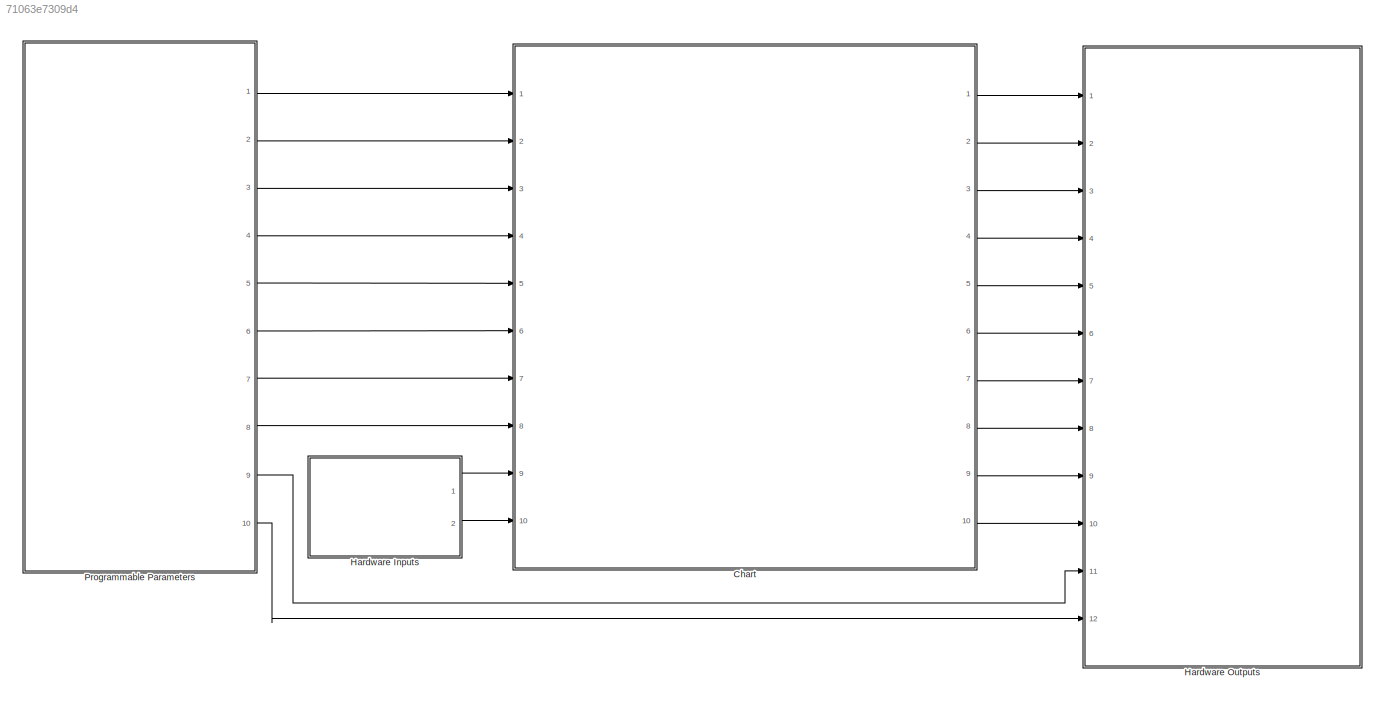
MODEL slx_71063e7309d4
KIND model
CONFIG AbsTol = auto
CONFIG EnableMultiTasking = on
CONFIG FixedStep = 1e-3
CONFIG MaxStep = auto
CONFIG MinStep = auto
CONFIG RelTol = 1e-3
CONFIG SampleTimeConstraint = Unconstrained
CONFIG Solver = FixedStepAuto
CONFIG SolverName = FixedStepAuto
CONFIG StartTime = 0.0
CONFIG StopTime = 10.0
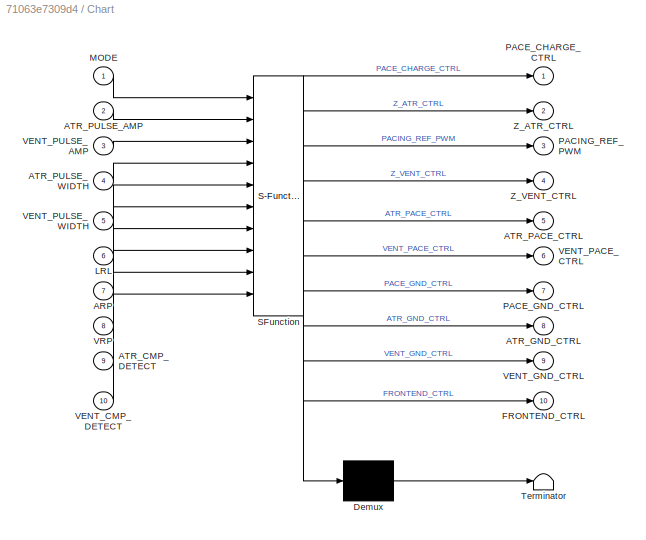
BLOCK [SubSystem] Chart
  ErrorFcn = Stateflow.Translate.translate
  PermitHierarchicalResolution = ExplicitOnly
  Ports = [10, 10]
  RequestExecContextInheritance = off
  SFBlockType = Chart
  TreatAsAtomicUnit = on
BLOCK [Demux] Chart/ Demux 
  Outputs = 1
  Ports = [1, 1]
BLOCK [S-Function] Chart/ SFunction 
  EnableBusSupport = on
  FunctionName = sf_sfun
  PortCounts = [10 11]
  Ports = [10, 11]
  SFcnIsStateOwnerBlock = off
  SFunctionDeploymentMode = off
  Tag = Stateflow S-Function 3
BLOCK [Terminator] Chart/ Terminator 
BLOCK [Inport] Chart/ARP
  Port = 7
BLOCK [Inport] Chart/ATR_CMP_DETECT
  Port = 9
BLOCK [Outport] Chart/ATR_GND_CTRL
  Port = 8
BLOCK [Outport] Chart/ATR_PACE_CTRL
  Port = 5
BLOCK [Inport] Chart/ATR_PULSE_AMP
  Port = 2
BLOCK [Inport] Chart/ATR_PULSE_WIDTH
  Port = 4
BLOCK [Outport] Chart/FRONTEND_CTRL
  Port = 10
BLOCK [Inport] Chart/LRL
  Port = 6
BLOCK [Inport] Chart/MODE
BLOCK [Outport] Chart/PACE_CHARGE_CTRL
BLOCK [Outport] Chart/PACE_GND_CTRL
  Port = 7
BLOCK [Outport] Chart/PACING_REF_PWM
  Port = 3
BLOCK [Inport] Chart/VENT_CMP_DETECT
  Port = 10
BLOCK [Outport] Chart/VENT_GND_CTRL
  Port = 9
BLOCK [Outport] Chart/VENT_PACE_CTRL
  Port = 6
BLOCK [Inport] Chart/VENT_PULSE_AMP
  Port = 3
BLOCK [Inport] Chart/VENT_PULSE_WIDTH
  Port = 5
BLOCK [Inport] Chart/VRP
  Port = 8
BLOCK [Outport] Chart/Z_ATR_CTRL
  Port = 2
BLOCK [Outport] Chart/Z_VENT_CTRL
  Port = 4
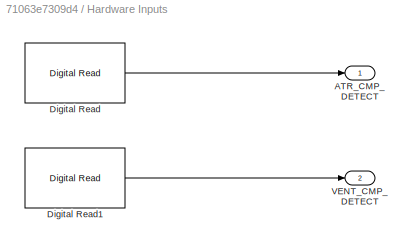
BLOCK [SubSystem] Hardware Inputs
  Ports = [0, 2]
  RequestExecContextInheritance = off
BLOCK [Outport] Hardware Inputs/ATR_CMP_DETECT
BLOCK [Reference] Hardware Inputs/Digital Read  REF=frdmk64flib/Digital Read
  Ports = [0, 1]
  SourceBlock = frdmk64flib/Digital Read
  SourceProductBaseCode = EC_FRDM_K64F
  SourceType = freedomk64f.DigitalRead
BLOCK [Reference] Hardware Inputs/Digital Read1  REF=frdmk64flib/Digital Read
  Ports = [0, 1]
  SourceBlock = frdmk64flib/Digital Read
  SourceProductBaseCode = EC_FRDM_K64F
  SourceType = freedomk64f.DigitalRead
BLOCK [Outport] Hardware Inputs/VENT_CMP_DETECT
  Port = 2
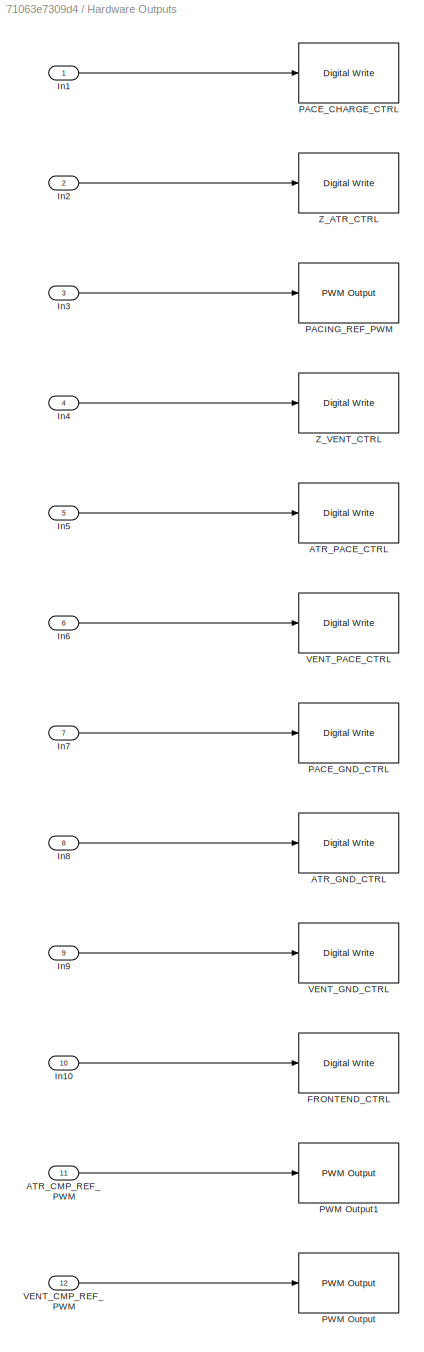
BLOCK [SubSystem] Hardware Outputs
  Ports = [12]
  RequestExecContextInheritance = off
BLOCK [Inport] Hardware Outputs/ATR_CMP_REF_PWM
  Port = 11
BLOCK [Reference] Hardware Outputs/ATR_GND_CTRL  REF=frdmk64flib/Digital Write
  Ports = [1]
  SourceBlock = frdmk64flib/Digital Write
  SourceProductBaseCode = EC_FRDM_K64F
  SourceType = freedomk64f.DigitalWrite
BLOCK [Reference] Hardware Outputs/ATR_PACE_CTRL  REF=frdmk64flib/Digital Write
  Ports = [1]
  SourceBlock = frdmk64flib/Digital Write
  SourceProductBaseCode = EC_FRDM_K64F
  SourceType = freedomk64f.DigitalWrite
BLOCK [Reference] Hardware Outputs/FRONTEND_CTRL  REF=frdmk64flib/Digital Write
  Ports = [1]
  SourceBlock = frdmk64flib/Digital Write
  SourceProductBaseCode = EC_FRDM_K64F
  SourceType = freedomk64f.DigitalWrite
BLOCK [Inport] Hardware Outputs/In1
BLOCK [Inport] Hardware Outputs/In10
  Port = 10
BLOCK [Inport] Hardware Outputs/In2
  Port = 2
BLOCK [Inport] Hardware Outputs/In3
  Port = 3
BLOCK [Inport] Hardware Outputs/In4
  Port = 4
BLOCK [Inport] Hardware Outputs/In5
  Port = 5
BLOCK [Inport] Hardware Outputs/In6
  Port = 6
BLOCK [Inport] Hardware Outputs/In7
  Port = 7
BLOCK [Inport] Hardware Outputs/In8
  Port = 8
BLOCK [Inport] Hardware Outputs/In9
  Port = 9
BLOCK [Reference] Hardware Outputs/PACE_CHARGE_CTRL  REF=frdmk64flib/Digital Write
  Ports = [1]
  SourceBlock = frdmk64flib/Digital Write
  SourceProductBaseCode = EC_FRDM_K64F
  SourceType = freedomk64f.DigitalWrite
BLOCK [Reference] Hardware Outputs/PACE_GND_CTRL  REF=frdmk64flib/Digital Write
  Ports = [1]
  SourceBlock = frdmk64flib/Digital Write
  SourceProductBaseCode = EC_FRDM_K64F
  SourceType = freedomk64f.DigitalWrite
BLOCK [Reference] Hardware Outputs/PACING_REF_PWM  REF=frdmk64flib/PWM Output
  Ports = [1]
  SourceBlock = frdmk64flib/PWM Output
  SourceProductBaseCode = EC_FRDM_K64F
  SourceType = freedomk64f.PWMOutput
BLOCK [Reference] Hardware Outputs/PWM Output  REF=frdmk64flib/PWM Output
  Ports = [1]
  SourceBlock = frdmk64flib/PWM Output
  SourceProductBaseCode = EC_FRDM_K64F
  SourceType = freedomk64f.PWMOutput
BLOCK [Reference] Hardware Outputs/PWM Output1  REF=frdmk64flib/PWM Output
  Ports = [1]
  SourceBlock = frdmk64flib/PWM Output
  SourceProductBaseCode = EC_FRDM_K64F
  SourceType = freedomk64f.PWMOutput
BLOCK [Inport] Hardware Outputs/VENT_CMP_REF_PWM
  Port = 12
BLOCK [Reference] Hardware Outputs/VENT_GND_CTRL  REF=frdmk64flib/Digital Write
  Ports = [1]
  SourceBlock = frdmk64flib/Digital Write
  SourceProductBaseCode = EC_FRDM_K64F
  SourceType = freedomk64f.DigitalWrite
BLOCK [Reference] Hardware Outputs/VENT_PACE_CTRL  REF=frdmk64flib/Digital Write
  Ports = [1]
  SourceBlock = frdmk64flib/Digital Write
  SourceProductBaseCode = EC_FRDM_K64F
  SourceType = freedomk64f.DigitalWrite
BLOCK [Reference] Hardware Outputs/Z_ATR_CTRL  REF=frdmk64flib/Digital Write
  Ports = [1]
  SourceBlock = frdmk64flib/Digital Write
  SourceProductBaseCode = EC_FRDM_K64F
  SourceType = freedomk64f.DigitalWrite
BLOCK [Reference] Hardware Outputs/Z_VENT_CTRL  REF=frdmk64flib/Digital Write
  Ports = [1]
  SourceBlock = frdmk64flib/Digital Write
  SourceProductBaseCode = EC_FRDM_K64F
  SourceType = freedomk64f.DigitalWrite
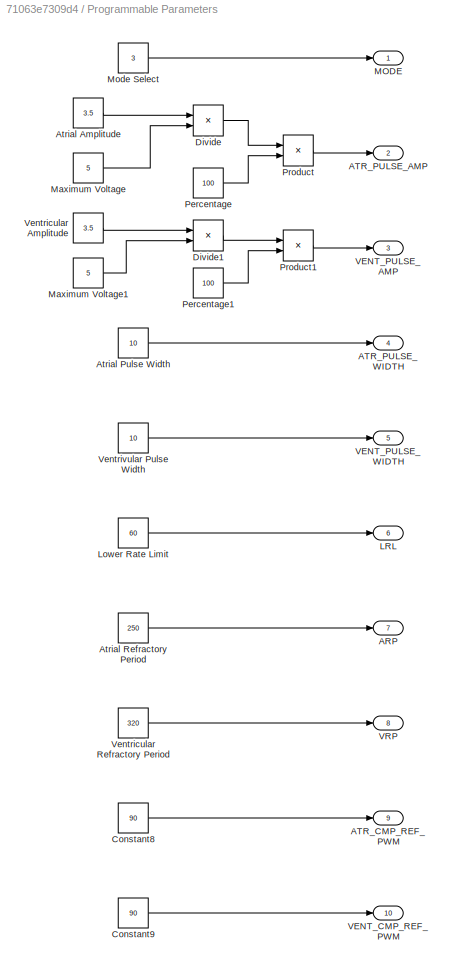
BLOCK [SubSystem] Programmable Parameters
  Ports = [0, 10]
  RequestExecContextInheritance = off
BLOCK [Outport] Programmable Parameters/ARP
  Port = 7
BLOCK [Outport] Programmable Parameters/ATR_CMP_REF_PWM
  Port = 9
BLOCK [Outport] Programmable Parameters/ATR_PULSE_AMP
  Port = 2
BLOCK [Outport] Programmable Parameters/ATR_PULSE_WIDTH
  Port = 4
BLOCK [Constant] Programmable Parameters/Atrial Amplitude
  Value = 3.5
BLOCK [Constant] Programmable Parameters/Atrial Pulse Width
  Value = 10
BLOCK [Constant] Programmable Parameters/Atrial Refractory Period
  Value = 250
BLOCK [Constant] Programmable Parameters/Constant8
  Value = 90
BLOCK [Constant] Programmable Parameters/Constant9
  Value = 90
BLOCK [Product] Programmable Parameters/Divide
  Inputs = */
  Ports = [2, 1]
BLOCK [Product] Programmable Parameters/Divide1
  Inputs = */
  Ports = [2, 1]
BLOCK [Outport] Programmable Parameters/LRL
  Port = 6
BLOCK [Constant] Programmable Parameters/Lower Rate Limit
  Value = 60
BLOCK [Outport] Programmable Parameters/MODE
BLOCK [Constant] Programmable Parameters/Maximum Voltage
  Value = 5
BLOCK [Constant] Programmable Parameters/Maximum Voltage1
  Value = 5
BLOCK [Constant] Programmable Parameters/Mode Select
  Value = 3
BLOCK [Constant] Programmable Parameters/Percentage
  Value = 100
BLOCK [Constant] Programmable Parameters/Percentage1
  Value = 100
BLOCK [Product] Programmable Parameters/Product
  Ports = [2, 1]
BLOCK [Product] Programmable Parameters/Product1
  Ports = [2, 1]
BLOCK [Outport] Programmable Parameters/VENT_CMP_REF_PWM
  Port = 10
BLOCK [Outport] Programmable Parameters/VENT_PULSE_AMP
  Port = 3
BLOCK [Outport] Programmable Parameters/VENT_PULSE_WIDTH
  Port = 5
BLOCK [Outport] Programmable Parameters/VRP
  Port = 8
BLOCK [Constant] Programmable Parameters/Ventricular Amplitude
  Value = 3.5
BLOCK [Constant] Programmable Parameters/Ventricular Refractory Period
  Value = 320
BLOCK [Constant] Programmable Parameters/Ventrivular Pulse Width
  Value = 10
LINE Chart:1 -> Hardware Outputs:1
LINE Chart:10 -> Hardware Outputs:10
LINE Chart:2 -> Hardware Outputs:2
LINE Chart:3 -> Hardware Outputs:3
LINE Chart:4 -> Hardware Outputs:4
LINE Chart:5 -> Hardware Outputs:5
LINE Chart:6 -> Hardware Outputs:6
LINE Chart:7 -> Hardware Outputs:7
LINE Chart:8 -> Hardware Outputs:8
LINE Chart:9 -> Hardware Outputs:9
LINE Hardware Inputs/Digital Read1:1 -> Hardware Inputs/VENT_CMP_DETECT:1
LINE Hardware Inputs/Digital Read:1 -> Hardware Inputs/ATR_CMP_DETECT:1
LINE Hardware Inputs:1 -> Chart:9
LINE Hardware Inputs:2 -> Chart:10
LINE Hardware Outputs/ATR_CMP_REF_PWM:1 -> Hardware Outputs/PWM Output1:1
LINE Hardware Outputs/In10:1 -> Hardware Outputs/FRONTEND_CTRL:1
LINE Hardware Outputs/In1:1 -> Hardware Outputs/PACE_CHARGE_CTRL:1
LINE Hardware Outputs/In2:1 -> Hardware Outputs/Z_ATR_CTRL:1
LINE Hardware Outputs/In3:1 -> Hardware Outputs/PACING_REF_PWM:1
LINE Hardware Outputs/In4:1 -> Hardware Outputs/Z_VENT_CTRL:1
LINE Hardware Outputs/In5:1 -> Hardware Outputs/ATR_PACE_CTRL:1
LINE Hardware Outputs/In6:1 -> Hardware Outputs/VENT_PACE_CTRL:1
LINE Hardware Outputs/In7:1 -> Hardware Outputs/PACE_GND_CTRL:1
LINE Hardware Outputs/In8:1 -> Hardware Outputs/ATR_GND_CTRL:1
LINE Hardware Outputs/In9:1 -> Hardware Outputs/VENT_GND_CTRL:1
LINE Hardware Outputs/VENT_CMP_REF_PWM:1 -> Hardware Outputs/PWM Output:1
LINE Programmable Parameters/Atrial Amplitude:1 -> Programmable Parameters/Divide:1
LINE Programmable Parameters/Atrial Pulse Width:1 -> Programmable Parameters/ATR_PULSE_WIDTH:1
LINE Programmable Parameters/Atrial Refractory Period:1 -> Programmable Parameters/ARP:1
LINE Programmable Parameters/Constant8:1 -> Programmable Parameters/ATR_CMP_REF_PWM:1
LINE Programmable Parameters/Constant9:1 -> Programmable Parameters/VENT_CMP_REF_PWM:1
LINE Programmable Parameters/Divide1:1 -> Programmable Parameters/Product1:1
LINE Programmable Parameters/Divide:1 -> Programmable Parameters/Product:1
LINE Programmable Parameters/Lower Rate Limit:1 -> Programmable Parameters/LRL:1
LINE Programmable Parameters/Maximum Voltage1:1 -> Programmable Parameters/Divide1:2
LINE Programmable Parameters/Maximum Voltage:1 -> Programmable Parameters/Divide:2
LINE Programmable Parameters/Mode Select:1 -> Programmable Parameters/MODE:1
LINE Programmable Parameters/Percentage1:1 -> Programmable Parameters/Product1:2
LINE Programmable Parameters/Percentage:1 -> Programmable Parameters/Product:2
LINE Programmable Parameters/Product1:1 -> Programmable Parameters/VENT_PULSE_AMP:1
LINE Programmable Parameters/Product:1 -> Programmable Parameters/ATR_PULSE_AMP:1
LINE Programmable Parameters/Ventricular Amplitude:1 -> Programmable Parameters/Divide1:1
LINE Programmable Parameters/Ventricular Refractory Period:1 -> Programmable Parameters/VRP:1
LINE Programmable Parameters/Ventrivular Pulse Width:1 -> Programmable Parameters/VENT_PULSE_WIDTH:1
LINE Programmable Parameters:1 -> Chart:1
LINE Programmable Parameters:10 -> Hardware Outputs:12
LINE Programmable Parameters:2 -> Chart:2
LINE Programmable Parameters:3 -> Chart:3
LINE Programmable Parameters:4 -> Chart:4
LINE Programmable Parameters:5 -> Chart:5
LINE Programmable Parameters:6 -> Chart:6
LINE Programmable Parameters:7 -> Chart:7
LINE Programmable Parameters:8 -> Chart:8
LINE Programmable Parameters:9 -> Hardware Outputs:11
CHART Chart states=15 transitions=41
  STATE_LABEL 'DEFAULT_STATE\n\nFRONTEND_CTRL = 0'
  STATE_LABEL 'AOO'
  STATE_LABEL 'STATE_2\n\n%Atrium Pacing\nPACE_CHARGE_CTRL = 0\nPACE_GND_CTRL = 1\nATR_PACE_CTRL = 1\nATR_GND_CTRL = 0\nZ_ATR_CTRL = 0\nZ_VENT_CTRL = 0\nVENT_GND_CTRL = 0\nVENT_PACE_CTRL = 0'
  STATE_LABEL 'STATE_1\n\n%Charging primary capacitor (C22)\nATR_PACE_CTRL = 0\nVENT_PACE_CTRL = 0\nPACING_REF_PWM = ATR_PULSE_AMP\nPACE_CHARGE_CTRL = 1\n%\n%Discharging blocking capacitor (C21)\nPACE_GND_CTRL = 1\nVENT_PACE_CTRL = 0\nZ_ATR_CTRL = 0\nZ_VENT_CTRL = 0\nATR_PACE_CTRL = 0\nATR_GND_CTRL = 1\nVENT_GND_CTRL = 0\n'
  STATE_LABEL '[after((60000/LRL) - ATR_PULSE_WIDTH, msec)]'
  STATE_LABEL '[MODE==1]'
  STATE_LABEL '[after(ATR_PULSE_WIDTH, msec)]'
  STATE_LABEL '[MODE~=1]'
  STATE_LABEL 'STATE_2\n\n%Atrium Pacing\nPACE_CHARGE_CTRL = 0\nPACE_GND_CTRL = 1\nATR_PACE_CTRL = 1\nATR_GND_CTRL = 0\nZ_ATR_CTRL = 0\nZ_VENT_CTRL = 0\nVENT_GND_CTRL = 0\nVENT_PACE_CTRL = 0'
  STATE_LABEL 'STATE_1\n\n%Charging primary capacitor (C22)\nATR_PACE_CTRL = 0\nVENT_PACE_CTRL = 0\nPACING_REF_PWM = ATR_PULSE_AMP\nPACE_CHARGE_CTRL = 1\n%\n%Discharging blocking capacitor (C21)\nPACE_GND_CTRL = 1\nVENT_PACE_CTRL = 0\nZ_ATR_CTRL = 0\nZ_VENT_CTRL = 0\nATR_PACE_CTRL = 0\nATR_GND_CTRL = 1\nVENT_GND_CTRL = 0\n'
  STATE_LABEL 'VOO'
  STATE_LABEL 'STATE_2\n\n%Ventricular Pacing\nPACE_CHARGE_CTRL = 0\nPACE_GND_CTRL = 1\nATR_PACE_CTRL = 0\nATR_GND_CTRL = 0\nZ_ATR_CTRL = 0\nZ_VENT_CTRL = 0\nVENT_GND_CTRL = 0\nVENT_PACE_CTRL = 1'
  STATE_LABEL 'STATE_1\n\n%Charging primary capacitor (C22)\nATR_PACE_CTRL = 0\nVENT_PACE_CTRL = 0\nPACING_REF_PWM = VENT_PULSE_AMP\nPACE_CHARGE_CTRL = 1\n%\n%Discharging blocking capacitor (C21)\nPACE_GND_CTRL = 1\nVENT_PACE_CTRL = 0\nZ_ATR_CTRL = 0\nZ_VENT_CTRL = 0\nATR_PACE_CTRL = 0\nATR_GND_CTRL = 0\nVENT_GND_CTRL = 1\n'
  STATE_LABEL '[after((60000/LRL) - VENT_PULSE_WIDTH, msec)]'
  STATE_LABEL '[MODE==2]'
  STATE_LABEL '[MODE~=2]'
  STATE_LABEL '[after(VENT_PULSE_WIDTH, msec)]'
  STATE_LABEL 'STATE_2\n\n%Ventricular Pacing\nPACE_CHARGE_CTRL = 0\nPACE_GND_CTRL = 1\nATR_PACE_CTRL = 0\nATR_GND_CTRL = 0\nZ_ATR_CTRL = 0\nZ_VENT_CTRL = 0\nVENT_GND_CTRL = 0\nVENT_PACE_CTRL = 1'
  STATE_LABEL 'STATE_1\n\n%Charging primary capacitor (C22)\nATR_PACE_CTRL = 0\nVENT_PACE_CTRL = 0\nPACING_REF_PWM = VENT_PULSE_AMP\nPACE_CHARGE_CTRL = 1\n%\n%Discharging blocking capacitor (C21)\nPACE_GND_CTRL = 1\nVENT_PACE_CTRL = 0\nZ_ATR_CTRL = 0\nZ_VENT_CTRL = 0\nATR_PACE_CTRL = 0\nATR_GND_CTRL = 0\nVENT_GND_CTRL = 1\n'
  STATE_LABEL 'AAI'
  STATE_LABEL 'ATR_SENSE'
  STATE_LABEL 'STATE_1\n\n%Enable sensing\nFRONTEND_CTRL = 1\n%\n%Charging primary capacitor (C22)\nATR_PACE_CTRL = 0\nVENT_PACE_CTRL = 0\nPACING_REF_PWM = ATR_PULSE_AMP\nPACE_CHARGE_CTRL = 1\n%\n%Discharging blocking capacitor (C21)\nPACE_GND_CTRL = 1\nVENT_PACE_CTRL = 0\nZ_ATR_CTRL = 0\nZ_VENT_CTRL = 0\nATR_PACE_CTRL = 0\nATR_GND_CTRL = 1\nVENT_GND_CTRL = 0\n'
  STATE_LABEL 'STATE_2\n\n%Atrium Pacing\nPACE_CHARGE_CTRL = 0\nPACE_GND_CTRL = 1\nATR_PACE_CTRL = 1\nATR_GND_CTRL = 0\nZ_ATR_CTRL = 0\nZ_VENT_CTRL = 0\nVENT_GND_CTRL = 0\nVENT_PACE_CTRL = 0'
  STATE_LABEL 'after((60000/LRL) - ATR_PULSE_WIDTH - ARP, msec)[ATR_CMP_DETECT == 0]'
  STATE_LABEL '[after(ARP, msec)]'
  STATE_LABEL '[ATR_CMP_DETECT == 1]'
  STATE_LABEL '[MODE==3]'
  STATE_LABEL '[MODE~=3]'
  STATE_LABEL '[after(ATR_PULSE_WIDTH, msec)]'
  STATE_LABEL 'ATR_SENSE'
  STATE_LABEL 'STATE_1\n\n%Enable sensing\nFRONTEND_CTRL = 1\n%\n%Charging primary capacitor (C22)\nATR_PACE_CTRL = 0\nVENT_PACE_CTRL = 0\nPACING_REF_PWM = ATR_PULSE_AMP\nPACE_CHARGE_CTRL = 1\n%\n%Discharging blocking capacitor (C21)\nPACE_GND_CTRL = 1\nVENT_PACE_CTRL = 0\nZ_ATR_CTRL = 0\nZ_VENT_CTRL = 0\nATR_PACE_CTRL = 0\nATR_GND_CTRL = 1\nVENT_GND_CTRL = 0\n'
  STATE_LABEL 'STATE_2\n\n%Atrium Pacing\nPACE_CHARGE_CTRL = 0\nPACE_GND_CTRL = 1\nATR_PACE_CTRL = 1\nATR_GND_CTRL = 0\nZ_ATR_CTRL = 0\nZ_VENT_CTRL = 0\nVENT_GND_CTRL = 0\nVENT_PACE_CTRL = 0'
  STATE_LABEL 'VVI'
  STATE_LABEL 'VENT_SENSE'
  STATE_LABEL 'STATE_2\n\n%Ventricular Pacing\nPACE_CHARGE_CTRL = 0\nPACE_GND_CTRL = 1\nATR_PACE_CTRL = 0\nATR_GND_CTRL = 0\nZ_ATR_CTRL = 0\nZ_VENT_CTRL = 0\nVENT_GND_CTRL = 0\nVENT_PACE_CTRL = 1'
  STATE_LABEL 'STATE_1\n\n%Enable Sensing\nFRONTEND_CTRL = 1\n%\n%Charging primary capacitor (C22)\nATR_PACE_CTRL = 0\nVENT_PACE_CTRL = 0\nPACING_REF_PWM = VENT_PULSE_AMP\nPACE_CHARGE_CTRL = 1\n%\n%Discharging blocking capacitor (C21)\nPACE_GND_CTRL = 1\nVENT_PACE_CTRL = 0\nZ_ATR_CTRL = 0\nZ_VENT_CTRL = 0\nATR_PACE_CTRL = 0\nATR_GND_CTRL = 0\nVENT_GND_CTRL = 1'
  STATE_LABEL 'after((60000/LRL) - VENT_PULSE_WIDTH - VRP, msec)[VENT_CMP_DETECT == 0]'
  STATE_LABEL '[after(VRP, msec)]'
  STATE_LABEL '[VENT_CMP_DETECT==1]'
  STATE_LABEL '[MODE==4]'
CHART  states=0 transitions=0
